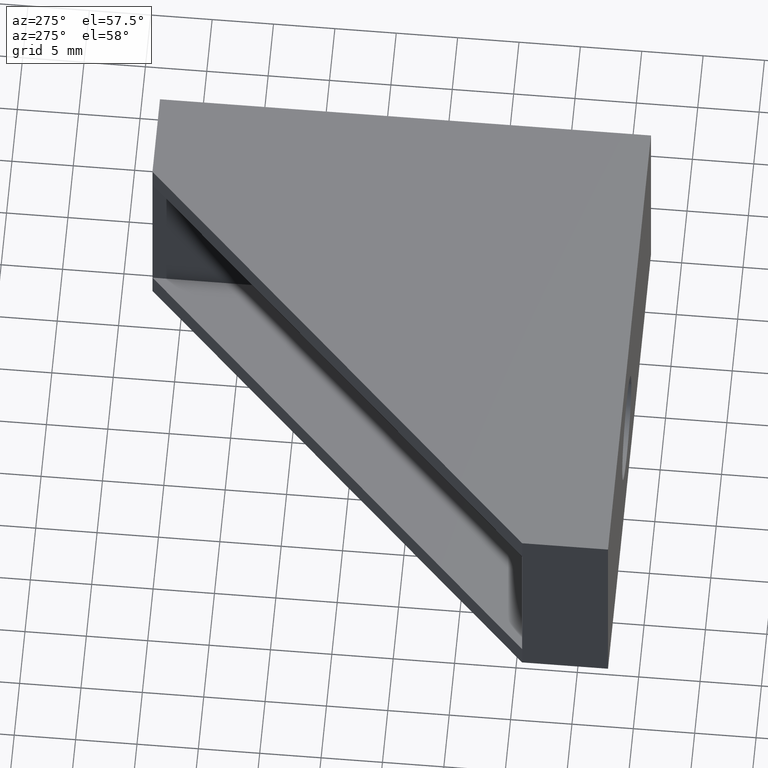
[diagram: clean part render]
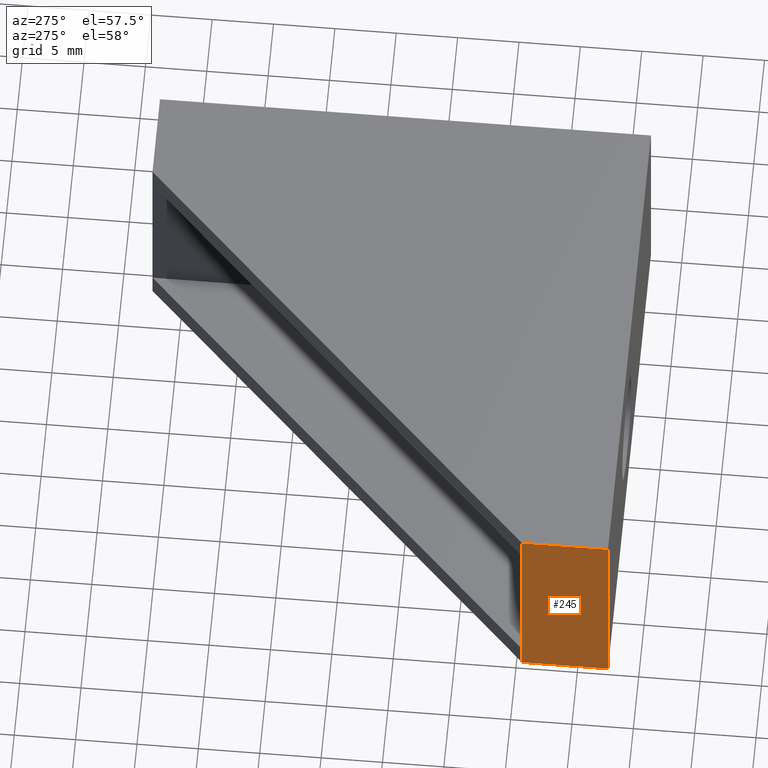
[diagram: same view with one face highlighted and labeled with its STEP entity id]
A machine part, auxiliary view. The second image highlights one B-rep face of the part: STEP entity #245.
In plain terms, the highlighted planar face has unit normal (-1, 0, 0).
Its self-contained STEP definition (entity closure, byte-faithful):
#37=FACE_OUTER_BOUND('',#54,.T.);
#54=EDGE_LOOP('',(#208,#209,#210,#211,#212,#213));
#67=LINE('',#350,#93);
#71=LINE('',#359,#97);
#72=LINE('',#363,#98);
#76=LINE('',#371,#102);
#80=LINE('',#379,#106);
#86=LINE('',#392,#112);
#93=VECTOR('',#283,14.);
#97=VECTOR('',#291,2.);
#98=VECTOR('',#296,6.99999999997181);
#102=VECTOR('',#302,2.);
#106=VECTOR('',#310,6.99999999997181);
#112=VECTOR('',#324,18.);
#118=VERTEX_POINT('',#346);
#119=VERTEX_POINT('',#348);
#122=VERTEX_POINT('',#355);
#123=VERTEX_POINT('',#362);
#126=VERTEX_POINT('',#370);
#128=VERTEX_POINT('',#378);
#140=EDGE_CURVE('',#119,#118,#67,.T.);
#145=EDGE_CURVE('',#118,#122,#71,.T.);
#146=EDGE_CURVE('',#122,#123,#72,.T.);
#150=EDGE_CURVE('',#126,#119,#76,.T.);
#154=EDGE_CURVE('',#126,#128,#80,.T.);
#161=EDGE_CURVE('',#128,#123,#86,.T.);
#208=ORIENTED_EDGE('',*,*,#146,.F.);
#209=ORIENTED_EDGE('',*,*,#145,.F.);
#210=ORIENTED_EDGE('',*,*,#140,.F.);
#211=ORIENTED_EDGE('',*,*,#150,.F.);
#212=ORIENTED_EDGE('',*,*,#154,.T.);
#213=ORIENTED_EDGE('',*,*,#161,.T.);
#233=PLANE('',#264);
#245=ADVANCED_FACE('',(#37),#233,.T.);
#264=AXIS2_PLACEMENT_3D('',#391,#322,#323);
#283=DIRECTION('',(0.,0.,1.));
#291=DIRECTION('',(0.,0.,1.));
#296=DIRECTION('',(0.,-1.,0.));
#302=DIRECTION('',(0.,0.,1.));
#310=DIRECTION('',(0.,-1.,0.));
#322=DIRECTION('center_axis',(-1.,0.,0.));
#323=DIRECTION('ref_axis',(0.,0.,1.));
#324=DIRECTION('',(0.,0.,1.));
#346=CARTESIAN_POINT('',(-39.9999999998399,-15.4999999999382,7.00000000003592));
#348=CARTESIAN_POINT('',(-39.9999999998399,-15.4999999999382,-6.99999999996408));
#350=CARTESIAN_POINT('',(-39.9999999998399,-15.4999999999382,-6.99999999996408));
#355=CARTESIAN_POINT('',(-39.9999999998399,-15.4999999999382,9.00000000003593));
#359=CARTESIAN_POINT('',(-39.9999999998399,-15.4999999999382,7.00000000003592));
#362=CARTESIAN_POINT('',(-39.9999999998399,-22.49999999991,9.00000000003593));
#363=CARTESIAN_POINT('',(-39.9999999998399,-15.4999999999382,9.00000000003593));
#370=CARTESIAN_POINT('',(-39.9999999998399,-15.4999999999382,-8.99999999996408));
#371=CARTESIAN_POINT('',(-39.9999999998399,-15.4999999999382,-8.99999999996408));
#378=CARTESIAN_POINT('',(-39.9999999998399,-22.49999999991,-8.99999999996408));
#379=CARTESIAN_POINT('',(-39.9999999998399,-15.4999999999382,-8.99999999996408));
#391=CARTESIAN_POINT('Origin',(-39.9999999998399,-15.4999566928509,-9.00004330705133));
#392=CARTESIAN_POINT('',(-39.9999999998399,-22.49999999991,-8.99999999996408));